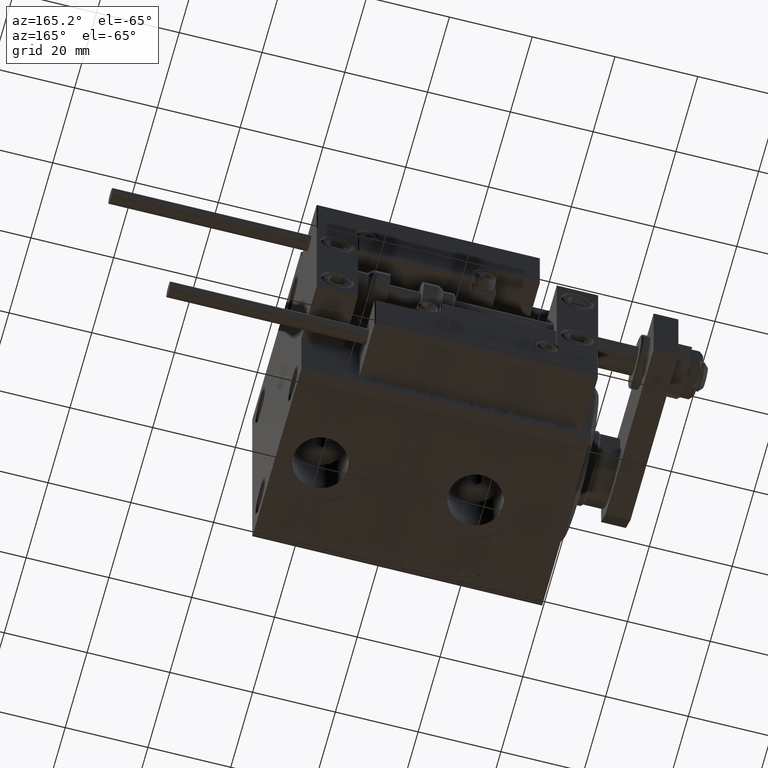
[diagram: clean part render]
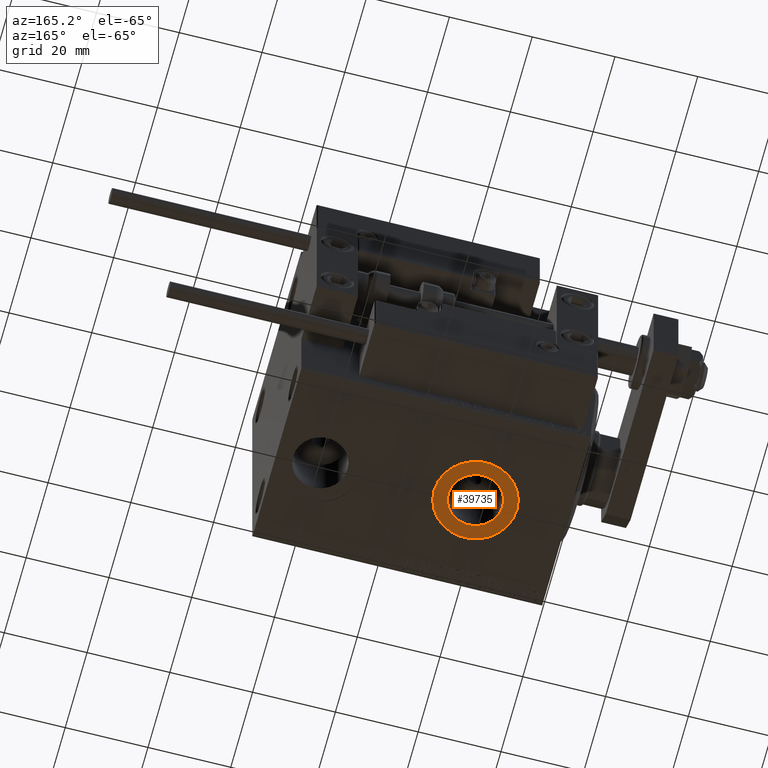
[diagram: same view with one face highlighted and labeled with its STEP entity id]
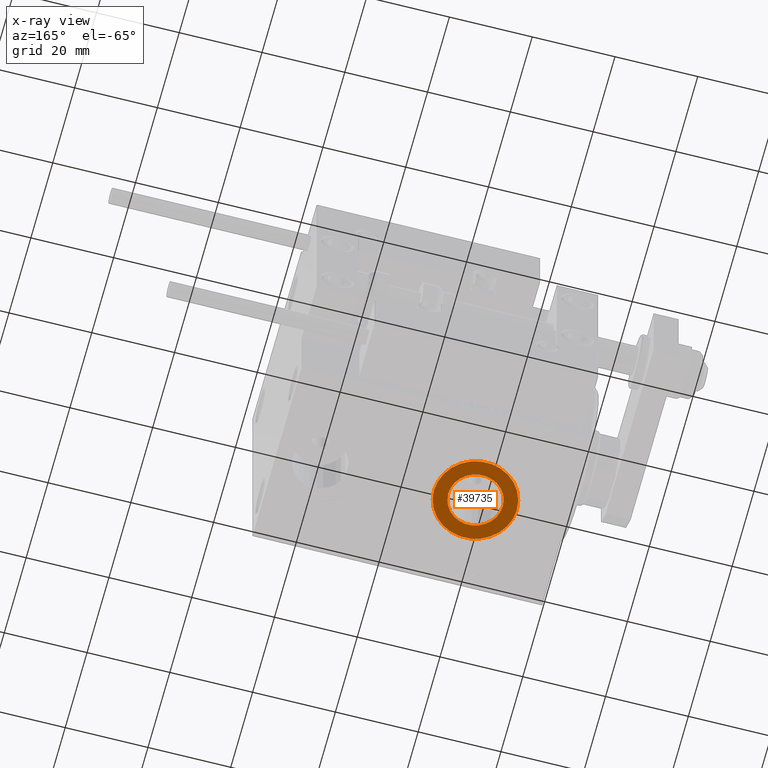
[diagram: x-ray of the same camera — body ghosted, the highlighted face saturated]
A machine part, auxiliary view. The second image highlights one B-rep face of the part: STEP entity #39735.
The next image is the same camera in x-ray: the body ghosted, the highlighted face saturated — about 0% of this face is hidden behind the body in this view.
In plain terms, the highlighted planar face has unit normal (0, 0, -1).
Its self-contained STEP definition (entity closure, byte-faithful):
#2098 = VERTEX_POINT ( 'NONE', #51714 ) ;
#2385 = AXIS2_PLACEMENT_3D ( 'NONE', #22718, #14980, #3294 ) ;
#3294 = DIRECTION ( 'NONE',  ( -1.000000000000000000, 0.000000000000000000, 0.000000000000000000 ) ) ;
#4077 = DIRECTION ( 'NONE',  ( -1.000000000000000000, 0.000000000000000000, 0.000000000000000000 ) ) ;
#6964 = DIRECTION ( 'NONE',  ( -1.000000000000000000, 0.000000000000000000, 0.000000000000000000 ) ) ;
#7554 = CIRCLE ( 'NONE', #2385, 10.00000000000000000 ) ;
#9361 = DIRECTION ( 'NONE',  ( 0.000000000000000000, 0.000000000000000000, -1.000000000000000000 ) ) ;
#11000 = CARTESIAN_POINT ( 'NONE',  ( 22.00000000000000000, -2.910683231281019398E-15, -32.40000000000000568 ) ) ;
#11317 = EDGE_CURVE ( 'NONE', #20057, #41135, #27821, .T. ) ;
#13311 = ORIENTED_EDGE ( 'NONE', *, *, #11317, .T. ) ;
#13353 = FACE_OUTER_BOUND ( 'NONE', #38880, .T. ) ;
#14035 = EDGE_CURVE ( 'NONE', #44700, #2098, #34256, .T. ) ;
#14747 = AXIS2_PLACEMENT_3D ( 'NONE', #11000, #27217, #4077 ) ;
#14980 = DIRECTION ( 'NONE',  ( 0.000000000000000000, 0.000000000000000000, -1.000000000000000000 ) ) ;
#15028 = ORIENTED_EDGE ( 'NONE', *, *, #14035, .F. ) ;
#15372 = EDGE_CURVE ( 'NONE', #2098, #44700, #41092, .T. ) ;
#15447 = CARTESIAN_POINT ( 'NONE',  ( 22.00000000000000000, -2.910683231281019398E-15, -32.40000000000000568 ) ) ;
#17495 = CARTESIAN_POINT ( 'NONE',  ( 11.99999999999999822, -2.910683231281019398E-15, -32.40000000000000568 ) ) ;
#19975 = DIRECTION ( 'NONE',  ( 0.000000000000000000, 0.000000000000000000, -1.000000000000000000 ) ) ;
#20057 = VERTEX_POINT ( 'NONE', #34658 ) ;
#20462 = ORIENTED_EDGE ( 'NONE', *, *, #15372, .F. ) ;
#22718 = CARTESIAN_POINT ( 'NONE',  ( 22.00000000000000000, -2.910683231281019398E-15, -32.40000000000000568 ) ) ;
#24963 = AXIS2_PLACEMENT_3D ( 'NONE', #15447, #19975, #27413 ) ;
#25272 = AXIS2_PLACEMENT_3D ( 'NONE', #27429, #35406, #6964 ) ;
#25583 = DIRECTION ( 'NONE',  ( -1.000000000000000000, 0.000000000000000000, -0.000000000000000000 ) ) ;
#27217 = DIRECTION ( 'NONE',  ( 0.000000000000000000, 0.000000000000000000, -1.000000000000000000 ) ) ;
#27413 = DIRECTION ( 'NONE',  ( -1.000000000000000000, 0.000000000000000000, 0.000000000000000000 ) ) ;
#27429 = CARTESIAN_POINT ( 'NONE',  ( 22.00000000000000000, -2.910683231281019398E-15, -32.40000000000000568 ) ) ;
#27821 = CIRCLE ( 'NONE', #25272, 10.00000000000000000 ) ;
#28714 = AXIS2_PLACEMENT_3D ( 'NONE', #45792, #9361, #25583 ) ;
#29565 = PLANE ( 'NONE',  #28714 ) ;
#29875 = EDGE_CURVE ( 'NONE', #41135, #20057, #7554, .T. ) ;
#32003 = EDGE_LOOP ( 'NONE', ( #20462, #15028 ) ) ;
#33115 = ORIENTED_EDGE ( 'NONE', *, *, #29875, .T. ) ;
#33565 = FACE_BOUND ( 'NONE', #32003, .T. ) ;
#34256 = CIRCLE ( 'NONE', #14747, 6.580000000000002736 ) ;
#34658 = CARTESIAN_POINT ( 'NONE',  ( 32.00000000000000000, -1.686036432133666338E-15, -32.40000000000000568 ) ) ;
#35406 = DIRECTION ( 'NONE',  ( 0.000000000000000000, 0.000000000000000000, -1.000000000000000000 ) ) ;
#38880 = EDGE_LOOP ( 'NONE', ( #33115, #13311 ) ) ;
#39735 = ADVANCED_FACE ( 'NONE', ( #33565, #13353 ), #29565, .T. ) ;
#41092 = CIRCLE ( 'NONE', #24963, 6.580000000000002736 ) ;
#41135 = VERTEX_POINT ( 'NONE', #17495 ) ;
#44700 = VERTEX_POINT ( 'NONE', #45399 ) ;
#45399 = CARTESIAN_POINT ( 'NONE',  ( 28.58000000000000185, -2.104865637442060750E-15, -32.40000000000000568 ) ) ;
#45792 = CARTESIAN_POINT ( 'NONE',  ( 0.000000000000000000, 0.000000000000000000, -32.40000000000000568 ) ) ;
#51714 = CARTESIAN_POINT ( 'NONE',  ( 15.41999999999999638, -2.910683231281019398E-15, -32.40000000000000568 ) ) ;